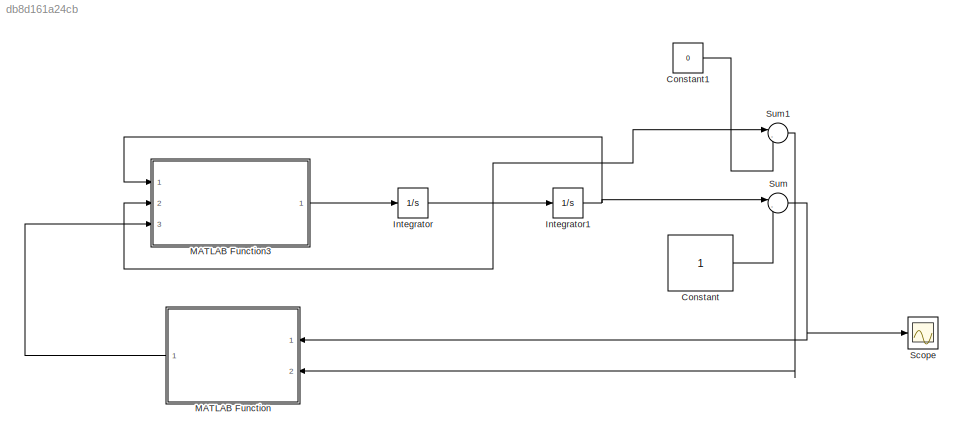
MODEL slx_db8d161a24cb
KIND model
CONFIG AbsTol = auto
CONFIG EnableMultiTasking = off
CONFIG FixedStep = auto
CONFIG MaxStep = auto
CONFIG MinStep = auto
CONFIG RelTol = 1e-3
CONFIG SampleTimeConstraint = Unconstrained
CONFIG Solver = VariableStepAuto
CONFIG SolverName = VariableStepAuto
CONFIG StartTime = 0.0
CONFIG StopTime = 100
BLOCK [Constant] Constant
BLOCK [Constant] Constant1
  Value = 0
BLOCK [Integrator] Integrator
  InitialCondition = [0,0]'
  Ports = [1, 1]
BLOCK [Integrator] Integrator1
  InitialCondition = [0,0]'
  Ports = [1, 1]
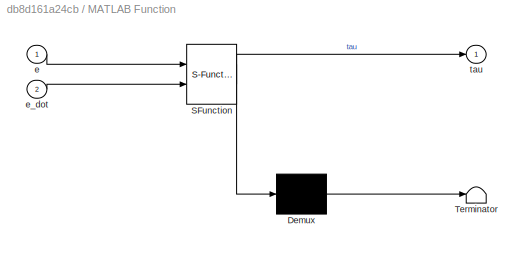
BLOCK [SubSystem] MATLAB Function
  ErrorFcn = Stateflow.Translate.translate
  PermitHierarchicalResolution = ExplicitOnly
  Ports = [2, 1]
  RequestExecContextInheritance = off
  SFBlockType = MATLAB Function
  TreatAsAtomicUnit = on
BLOCK [Demux] MATLAB Function/ Demux 
  Outputs = 1
  Ports = [1, 1]
BLOCK [S-Function] MATLAB Function/ SFunction 
  EnableBusSupport = on
  FunctionName = sf_sfun
  PortCounts = [2 2]
  Ports = [2, 2]
  SFcnIsStateOwnerBlock = off
  SFunctionDeploymentMode = off
  Tag = Stateflow S-Function 2
BLOCK [Terminator] MATLAB Function/ Terminator 
BLOCK [Inport] MATLAB Function/e
  IconDisplay = Port number
BLOCK [Inport] MATLAB Function/e_dot
  IconDisplay = Port number
  Port = 2
BLOCK [Outport] MATLAB Function/tau
  IconDisplay = Port number
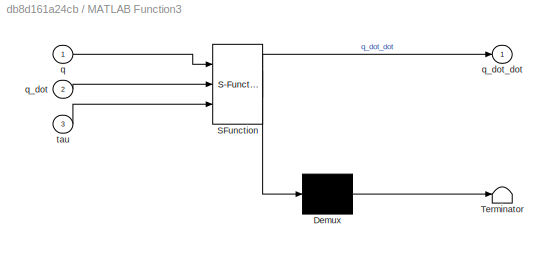
BLOCK [SubSystem] MATLAB Function3
  ErrorFcn = Stateflow.Translate.translate
  PermitHierarchicalResolution = ExplicitOnly
  Ports = [3, 1]
  RequestExecContextInheritance = off
  SFBlockType = MATLAB Function
  TreatAsAtomicUnit = on
BLOCK [Demux] MATLAB Function3/ Demux 
  Outputs = 1
  Ports = [1, 1]
BLOCK [S-Function] MATLAB Function3/ SFunction 
  EnableBusSupport = on
  FunctionName = sf_sfun
  PortCounts = [3 2]
  Ports = [3, 2]
  SFcnIsStateOwnerBlock = off
  SFunctionDeploymentMode = off
  Tag = Stateflow S-Function 4
BLOCK [Terminator] MATLAB Function3/ Terminator 
BLOCK [Inport] MATLAB Function3/q
  IconDisplay = Port number
BLOCK [Inport] MATLAB Function3/q_dot
  IconDisplay = Port number
  Port = 2
BLOCK [Outport] MATLAB Function3/q_dot_dot
  IconDisplay = Port number
BLOCK [Inport] MATLAB Function3/tau
  IconDisplay = Port number
  Port = 3
BLOCK [Scope] Scope
  Floating = off
  NumInputPorts = 1
  Ports = [1]
  ScopeSpecificationString = Simulink.scopes.TimeScopeBlockCfg('CurrentConfiguration', extmgr.ConfigurationSet(extmgr.Configuration('Core','General UI',true),extmgr.Configuration('Core','Source UI',true),extmgr.Configuration('Sources','WiredSimulink',true),extmgr.Configuration('Visuals','Time Domain',true,'SerializedDisplays',{struct('MinYLimReal','-0.49041','MaxYLimReal','1.17917','YLabelReal','','MinYLimMag','0.00000','MaxY...<+1387ch>
BLOCK [Sum] Sum
  IconShape = round
  InputSameDT = off
  Inputs = |-+
  OutDataTypeStr = Inherit: Inherit via internal rule
  Ports = [2, 1]
  SaturateOnIntegerOverflow = off
BLOCK [Sum] Sum1
  IconShape = round
  InputSameDT = off
  Inputs = |-+
  OutDataTypeStr = Inherit: Inherit via internal rule
  Ports = [2, 1]
  SaturateOnIntegerOverflow = off
LINE Constant1:1 -> Sum1:2
LINE Constant:1 -> Sum:2
NET Integrator1:1 -> MATLAB Function3:1, Sum:1
NET Integrator:1 -> Integrator1:1, MATLAB Function3:2, Sum1:1
LINE MATLAB Function3:1 -> Integrator:1
LINE MATLAB Function:1 -> MATLAB Function3:3
LINE Sum1:1 -> MATLAB Function:2
NET Sum:1 -> MATLAB Function:1, Scope:1
note: NET lines group one-source signal fan-out (src -> all destinations, sorted); 1:1 wires keep LINE
CHART MATLAB Function states=1 transitions=1
  STATE_LABEL 'eML_blk_kernel()'
  STATE_LABEL 'SCRIPT:\nfunction tau = PD_Controller(e,e_dot)\n\nkd = 2;\nkp = 2;\ntau = kd*e_dot + kp*e;\nend\n'
CHART MATLAB Function3 states=1 transitions=1
  STATE_LABEL 'eML_blk_kernel()'
  STATE_LABEL 'SCRIPT:\nfunction q_dot_dot = fcn(q,q_dot,tau)\n\nm1 = 1;\nm2 = 1;\n\nl1=1;\nl2=1;\n\nr1=l1/2;\nr2=l2/2;\n\n\nIzz1 = (1/12)*m1*l1^2;\nIzz2 = (1/12)*m2*l2^2;\n\n\n\nAlpha = Izz1 + Izz2 + m1*(r1)^2 + m2*(l1^2+r2^2);\nBeta = m2*l1*r2;\nDelta = Izz2 +m2*r2^2;\n\nM = [Alpha + 2* Beta *cos(q(2)), Delta + Beta *cos(q(2));\n     Delta + Beta *cos(q(2)),    Delta];\n\nC = [-Beta*sin(q(2))*q_dot(2), -Beta*sin(q(2))*(q_dot(1)+q_dot(...<+107ch>'
